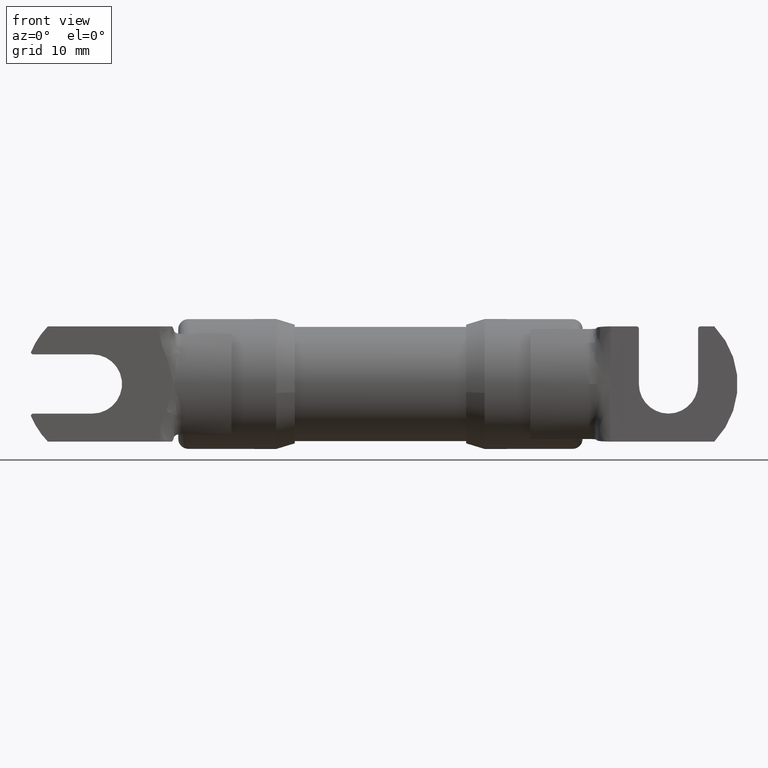
[diagram: clean part render]
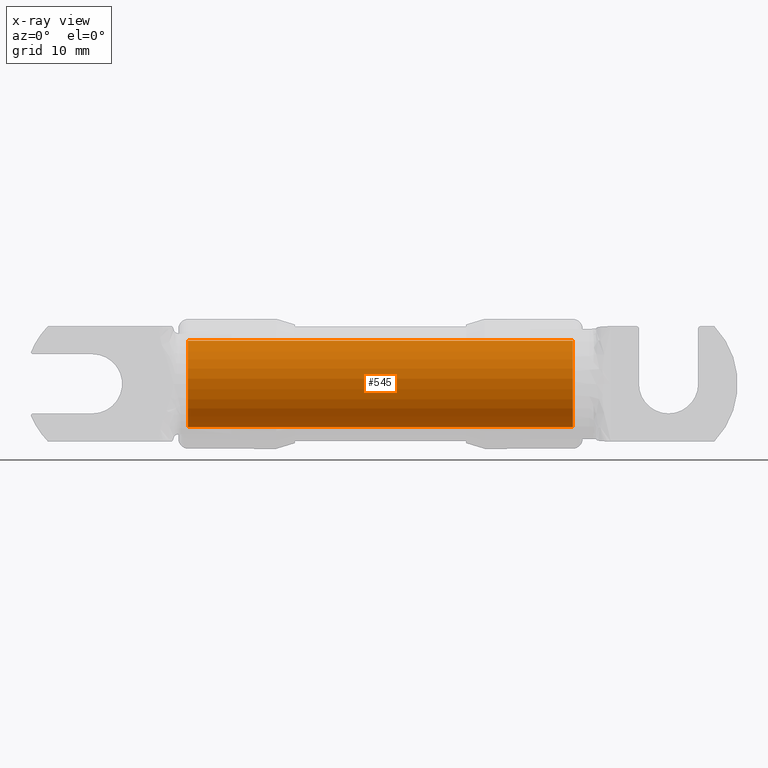
[diagram: x-ray — body ghosted, one internal face saturated and labeled with its STEP entity id]
A machine part, front view, then the same camera in x-ray: the body is ghosted and one INTERNAL B-rep face — a face not visible from any outside direction — is saturated and labeled: STEP entity #545.
In plain terms, the highlighted cylindrical surface (partial cylindrical patch) has radius 4.7625 mm, axis along (-1, -0, -0).
Its self-contained STEP definition (entity closure, byte-faithful):
#286 = AXIS2_PLACEMENT_3D ( 'NONE', #2193, #2885, #4418 ) ;
#544 = CARTESIAN_POINT ( 'NONE',  ( -0.8349999999999999600, 0.0000000000000000000, 0.1875000000000000300 ) ) ;
#545 = ADVANCED_FACE ( 'NONE', ( #4359 ), #4951, .F. ) ;
#607 = ORIENTED_EDGE ( 'NONE', *, *, #1461, .T. ) ;
#650 = VERTEX_POINT ( 'NONE', #3657 ) ;
#854 = CIRCLE ( 'NONE', #3485, 0.1875000000000000300 ) ;
#876 = VECTOR ( 'NONE', #2872, 39.37007874015748100 ) ;
#961 = CARTESIAN_POINT ( 'NONE',  ( 0.8349999999999999600, 0.0000000000000000000, 0.0000000000000000000 ) ) ;
#1201 = CARTESIAN_POINT ( 'NONE',  ( -0.8349999999999999600, 2.296212748401287700E-017, -0.1875000000000000300 ) ) ;
#1323 = VERTEX_POINT ( 'NONE', #544 ) ;
#1419 = DIRECTION ( 'NONE',  ( 0.0000000000000000000, 0.0000000000000000000, -1.000000000000000000 ) ) ;
#1461 = EDGE_CURVE ( 'NONE', #1886, #3254, #3267, .T. ) ;
#1510 = EDGE_CURVE ( 'NONE', #1323, #3254, #3324, .T. ) ;
#1631 = EDGE_CURVE ( 'NONE', #650, #1323, #5591, .T. ) ;
#1886 = VERTEX_POINT ( 'NONE', #3824 ) ;
#2193 = CARTESIAN_POINT ( 'NONE',  ( 0.8349999999999999600, 0.0000000000000000000, 0.0000000000000000000 ) ) ;
#2404 = CARTESIAN_POINT ( 'NONE',  ( 0.8349999999999999600, 2.296212748401287700E-017, -0.1875000000000000300 ) ) ;
#2872 = DIRECTION ( 'NONE',  ( -1.000000000000000000, -0.0000000000000000000, -0.0000000000000000000 ) ) ;
#2885 = DIRECTION ( 'NONE',  ( -1.000000000000000000, -0.0000000000000000000, -0.0000000000000000000 ) ) ;
#3254 = VERTEX_POINT ( 'NONE', #1201 ) ;
#3267 = LINE ( 'NONE', #2404, #876 ) ;
#3276 = EDGE_LOOP ( 'NONE', ( #3481, #607, #3770, #4717 ) ) ;
#3324 = CIRCLE ( 'NONE', #5690, 0.1875000000000000300 ) ;
#3389 = DIRECTION ( 'NONE',  ( -1.000000000000000000, -0.0000000000000000000, -0.0000000000000000000 ) ) ;
#3481 = ORIENTED_EDGE ( 'NONE', *, *, #4236, .T. ) ;
#3485 = AXIS2_PLACEMENT_3D ( 'NONE', #961, #4082, #1419 ) ;
#3657 = CARTESIAN_POINT ( 'NONE',  ( 0.8349999999999999600, 0.0000000000000000000, 0.1875000000000000300 ) ) ;
#3770 = ORIENTED_EDGE ( 'NONE', *, *, #1510, .F. ) ;
#3824 = CARTESIAN_POINT ( 'NONE',  ( 0.8349999999999999600, 2.296212748401287700E-017, -0.1875000000000000300 ) ) ;
#3888 = DIRECTION ( 'NONE',  ( 1.000000000000000000, 0.0000000000000000000, 0.0000000000000000000 ) ) ;
#4082 = DIRECTION ( 'NONE',  ( 1.000000000000000000, 0.0000000000000000000, 0.0000000000000000000 ) ) ;
#4236 = EDGE_CURVE ( 'NONE', #650, #1886, #854, .T. ) ;
#4299 = VECTOR ( 'NONE', #3389, 39.37007874015748100 ) ;
#4359 = FACE_OUTER_BOUND ( 'NONE', #3276, .T. ) ;
#4418 = DIRECTION ( 'NONE',  ( 0.0000000000000000000, 0.0000000000000000000, 1.000000000000000000 ) ) ;
#4717 = ORIENTED_EDGE ( 'NONE', *, *, #1631, .F. ) ;
#4951 = CYLINDRICAL_SURFACE ( 'NONE', #286, 0.1875000000000000300 ) ;
#5498 = CARTESIAN_POINT ( 'NONE',  ( 0.8349999999999999600, 0.0000000000000000000, 0.1875000000000000300 ) ) ;
#5591 = LINE ( 'NONE', #5498, #4299 ) ;
#5655 = CARTESIAN_POINT ( 'NONE',  ( -0.8349999999999999600, 0.0000000000000000000, 0.0000000000000000000 ) ) ;
#5672 = DIRECTION ( 'NONE',  ( 0.0000000000000000000, 0.0000000000000000000, -1.000000000000000000 ) ) ;
#5690 = AXIS2_PLACEMENT_3D ( 'NONE', #5655, #3888, #5672 ) ;